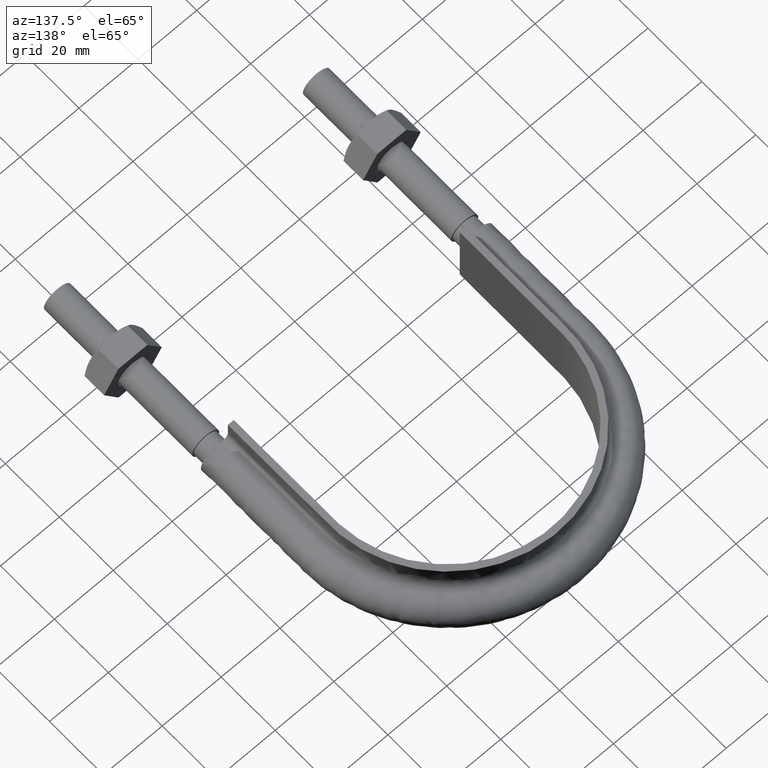
[diagram: clean part render]
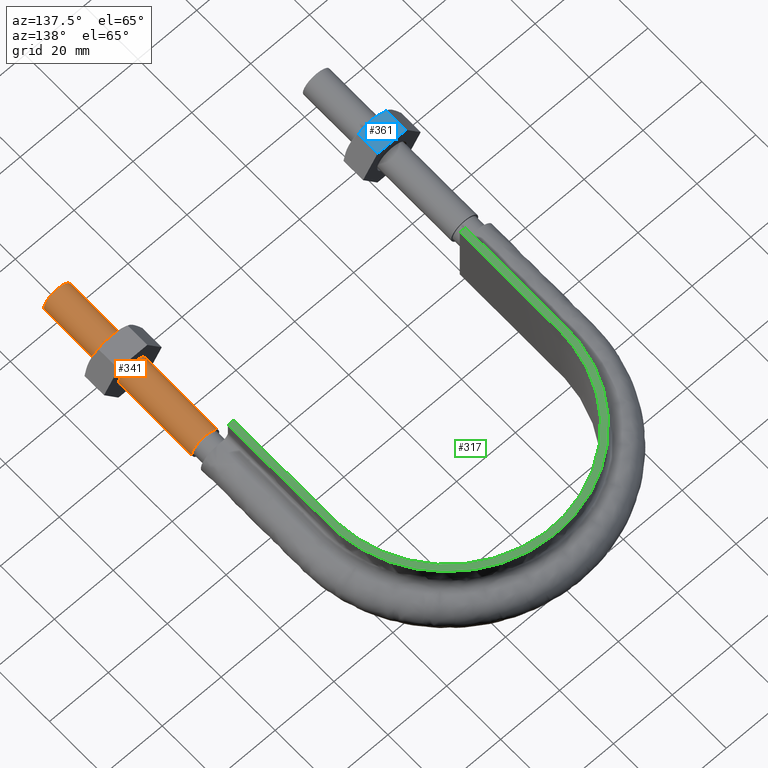
[diagram: same view with three faces highlighted in distinct colors, each labeled with its STEP entity id]
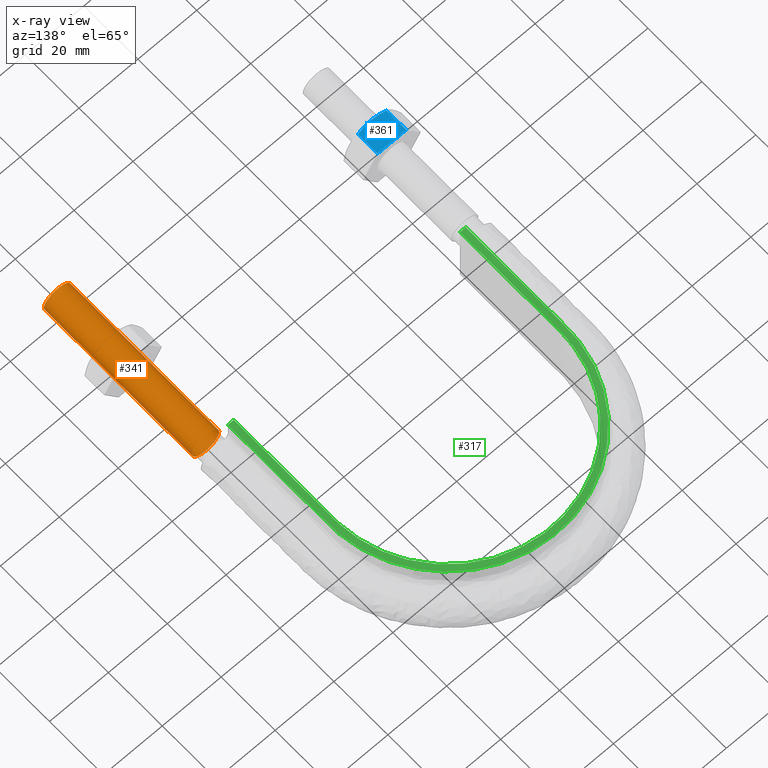
[diagram: x-ray of the same camera — body ghosted, the three highlighted faces saturated]
A machine part, auxiliary view with three faces highlighted in distinct colors.
The next image is the same camera in x-ray (body ghosted, the three faces saturated) — at least one of them is partly hidden behind the body in this view.
Their STEP definitions:

[orange] entity #341 — the highlighted cylindrical surface (bore or boss wall) has radius 4.6 mm, axis along (-0, -1, -0).
#341 = ADVANCED_FACE( '', ( #452, #453 ), #454, .T. );
#452 = FACE_OUTER_BOUND( '', #1451, .T. );
#453 = FACE_OUTER_BOUND( '', #1452, .T. );
#454 = CYLINDRICAL_SURFACE( '', #1453, 4.60000000000000 );
#1451 = EDGE_LOOP( '', ( #1739 ) );
#1452 = EDGE_LOOP( '', ( #1740 ) );
#1453 = AXIS2_PLACEMENT_3D( '', #1741, #1742, #1743 );
#1739 = ORIENTED_EDGE( '', *, *, #2155, .F. );
#1740 = ORIENTED_EDGE( '', *, *, #2156, .T. );
#1741 = CARTESIAN_POINT( '', ( 44.0000000000000, 55.0000000000000, 3.39828263185710E-015 ) );
#1742 = DIRECTION( '', ( -2.44921270764475E-016, -1.00000000000000, -6.12303176911189E-017 ) );
#1743 = DIRECTION( '', ( 1.00000000000000, -2.44921270764475E-016, -7.49830360911069E-033 ) );
#2155 = EDGE_CURVE( '', #2333, #2333, #2334, .T. );
#2156 = EDGE_CURVE( '', #2335, #2335, #2336, .T. );
#2333 = VERTEX_POINT( '', #2842 );
#2334 = CIRCLE( '', #2843, 4.60000000000000 );
#2335 = VERTEX_POINT( '', #2844 );
#2336 = CIRCLE( '', #2845, 4.60000000000000 );
#2842 = CARTESIAN_POINT( '', ( 48.6000000000000, -1.19031737591535E-014, 3.06151588455591E-017 ) );
#2843 = AXIS2_PLACEMENT_3D( '', #3232, #3233, #3234 );
#2844 = CARTESIAN_POINT( '', ( 48.6000000000000, 55.0000000000000, 3.39828263185710E-015 ) );
#2845 = AXIS2_PLACEMENT_3D( '', #3235, #3236, #3237 );
#3232 = CARTESIAN_POINT( '', ( 44.0000000000000, -1.07765359136369E-014, 3.06151588455591E-017 ) );
#3233 = DIRECTION( '', ( -2.44921270764475E-016, -1.00000000000000, -6.12303176911189E-017 ) );
#3234 = DIRECTION( '', ( 1.00000000000000, -2.44921270764475E-016, -7.49830360911069E-033 ) );
#3235 = CARTESIAN_POINT( '', ( 44.0000000000000, 55.0000000000000, 3.39828263185710E-015 ) );
#3236 = DIRECTION( '', ( -2.44921270764475E-016, -1.00000000000000, -6.12303176911189E-017 ) );
#3237 = DIRECTION( '', ( 1.00000000000000, -2.44921270764475E-016, -7.49830360911069E-033 ) );

[blue] entity #361 — the highlighted planar face has unit normal (0, 0, -1).
#361 = ADVANCED_FACE( '', ( #498 ), #499, .F. );
#498 = FACE_OUTER_BOUND( '', #1497, .T. );
#499 = PLANE( '', #1498 );
#1497 = EDGE_LOOP( '', ( #1874, #1875, #1876, #1877, #1878 ) );
#1498 = AXIS2_PLACEMENT_3D( '', #1879, #1880, #1881 );
#1874 = ORIENTED_EDGE( '', *, *, #2204, .F. );
#1875 = ORIENTED_EDGE( '', *, *, #2166, .F. );
#1876 = ORIENTED_EDGE( '', *, *, #2205, .F. );
#1877 = ORIENTED_EDGE( '', *, *, #2186, .F. );
#1878 = ORIENTED_EDGE( '', *, *, #2206, .F. );
#1879 = CARTESIAN_POINT( '', ( -48.9074772881118, 28.0000000000000, 8.50000000000000 ) );
#1880 = DIRECTION( '', ( 1.11022302462516E-016, 6.12303176911189E-017, -1.00000000000000 ) );
#1881 = DIRECTION( '', ( 0.000000000000000, -1.00000000000000, -6.12303176911189E-017 ) );
#2166 = EDGE_CURVE( '', #2354, #2349, #2356, .T. );
#2186 = EDGE_CURVE( '', #2391, #2393, #2394, .T. );
#2204 = EDGE_CURVE( '', #2349, #2418, #2419, .T. );
#2205 = EDGE_CURVE( '', #2393, #2354, #2420, .T. );
#2206 = EDGE_CURVE( '', #2418, #2391, #2421, .F. );
#2349 = VERTEX_POINT( '', #2868 );
#2354 = VERTEX_POINT( '', #2878 );
#2356 = B_SPLINE_CURVE_WITH_KNOTS( '', 3, ( #2880, #2881, #2882, #2883, #2884, #2885 ), .UNSPECIFIED., .F., .F., ( 4, 2, 4 ), ( 6.93889390390723E-018, 0.00246745482903606, 0.00493490965807212 ), .UNSPECIFIED. );
#2391 = VERTEX_POINT( '', #2942 );
#2393 = VERTEX_POINT( '', #2944 );
#2394 = LINE( '', #2945, #2946 );
#2418 = VERTEX_POINT( '', #2991 );
#2419 = B_SPLINE_CURVE_WITH_KNOTS( '', 3, ( #2992, #2993, #2994, #2995, #2996, #2997 ), .UNSPECIFIED., .F., .F., ( 4, 2, 4 ), ( 0.000000000000000, 0.00246745482903606, 0.00493490965807212 ), .UNSPECIFIED. );
#2420 = LINE( '', #2998, #2999 );
#2421 = LINE( '', #3000, #3001 );
#2868 = CARTESIAN_POINT( '', ( -44.0000000000000, 20.0000000000000, 8.50000000000000 ) );
#2878 = CARTESIAN_POINT( '', ( -39.1225006406971, 20.7505553499465, 8.50000000000000 ) );
#2880 = CARTESIAN_POINT( '', ( -39.1225006406971, 20.7505553499465, 8.50000000000000 ) );
#2881 = CARTESIAN_POINT( '', ( -39.9194282933228, 20.5215585493657, 8.50000000000000 ) );
#2882 = CARTESIAN_POINT( '', ( -40.7225568243372, 20.3328582843707, 8.50000000000000 ) );
#2883 = CARTESIAN_POINT( '', ( -42.3466937523143, 20.0716504305290, 8.50000000000000 ) );
#2884 = CARTESIAN_POINT( '', ( -43.1678340498093, 20.0000000000000, 8.50000000000000 ) );
#2885 = CARTESIAN_POINT( '', ( -44.0000000000000, 20.0000000000000, 8.50000000000000 ) );
#2942 = CARTESIAN_POINT( '', ( -48.8774993593029, 28.0000000000000, 8.50000000000000 ) );
#2944 = CARTESIAN_POINT( '', ( -39.1225006406971, 28.0000000000000, 8.50000000000000 ) );
#2945 = CARTESIAN_POINT( '', ( -39.1000000000000, 28.0000000000000, 8.50000000000000 ) );
#2946 = VECTOR( '', #3290, 1000.00000000000 );
#2991 = CARTESIAN_POINT( '', ( -48.8774993593029, 20.7505553499465, 8.50000000000000 ) );
#2992 = CARTESIAN_POINT( '', ( -44.0000000000000, 20.0000000000000, 8.50000000000000 ) );
#2993 = CARTESIAN_POINT( '', ( -44.8321659501907, 20.0000000000000, 8.50000000000000 ) );
#2994 = CARTESIAN_POINT( '', ( -45.6533062476857, 20.0716504305290, 8.50000000000000 ) );
#2995 = CARTESIAN_POINT( '', ( -47.2774431756629, 20.3328582843707, 8.50000000000000 ) );
#2996 = CARTESIAN_POINT( '', ( -48.0805717066773, 20.5215585493657, 8.50000000000000 ) );
#2997 = CARTESIAN_POINT( '', ( -48.8774993593029, 20.7505553499465, 8.50000000000000 ) );
#2998 = CARTESIAN_POINT( '', ( -39.1225006406971, 28.0000000000000, 8.50000000000000 ) );
#2999 = VECTOR( '', #3321, 1000.00000000000 );
#3000 = CARTESIAN_POINT( '', ( -48.8774993593029, 28.0000000000000, 8.50000000000000 ) );
#3001 = VECTOR( '', #3322, 1000.00000000000 );
#3290 = DIRECTION( '', ( 1.00000000000000, -2.44921270764475E-016, 1.11022302462516E-016 ) );
#3321 = DIRECTION( '', ( -2.44921270764475E-016, -1.00000000000000, -6.12303176911189E-017 ) );
#3322 = DIRECTION( '', ( -2.44921270764475E-016, -1.00000000000000, -6.12303176911189E-017 ) );

[green] entity #317 — the highlighted planar face has unit normal (0, 0, 1).
#317 = ADVANCED_FACE( '', ( #399 ), #400, .T. );
#399 = FACE_OUTER_BOUND( '', #1099, .T. );
#400 = PLANE( '', #1100 );
#1099 = EDGE_LOOP( '', ( #1579, #1580, #1581, #1582 ) );
#1100 = AXIS2_PLACEMENT_3D( '', #1583, #1584, #1585 );
#1579 = ORIENTED_EDGE( '', *, *, #2112, .T. );
#1580 = ORIENTED_EDGE( '', *, *, #2119, .F. );
#1581 = ORIENTED_EDGE( '', *, *, #2120, .T. );
#1582 = ORIENTED_EDGE( '', *, *, #2117, .F. );
#1583 = CARTESIAN_POINT( '', ( 55.0000000000000, 159.300000000000, 12.5000000000000 ) );
#1584 = DIRECTION( '', ( 0.000000000000000, 0.000000000000000, 1.00000000000000 ) );
#1585 = DIRECTION( '', ( 1.00000000000000, 0.000000000000000, 0.000000000000000 ) );
#2112 = EDGE_CURVE( '', #2266, #2263, #2267, .F. );
#2117 = EDGE_CURVE( '', #2266, #2275, #2276, .T. );
#2119 = EDGE_CURVE( '', #2278, #2263, #2279, .T. );
#2120 = EDGE_CURVE( '', #2278, #2275, #2280, .F. );
#2263 = VERTEX_POINT( '', #2513 );
#2266 = VERTEX_POINT( '', #2517 );
#2267 = LINE( '', #2518, #2519 );
#2275 = VERTEX_POINT( '', #2583 );
#2276 = B_SPLINE_CURVE_WITH_KNOTS( '', 3, ( #2584, #2585, #2586, #2587, #2588, #2589, #2590, #2591, #2592, #2593, #2594, #2595, #2596, #2597, #2598, #2599, #2600 ), .UNSPECIFIED., .F., .F., ( 4, 3, 1, 1, 1, 1, 1, 1, 1, 3, 4 ), ( 0.0698254364089772, 1.00000000000000, 1.50000000000000, 2.00000000000000, 3.00000000000000, 4.00000000000000, 5.00000000000000, 6.00000000000000, 6.50000000000000, 7.00000000000000, 7.93017456359102 ), .UNSPECIFIED. );
#2278 = VERTEX_POINT( '', #2632 );
#2279 = B_SPLINE_CURVE_WITH_KNOTS( '', 3, ( #2633, #2634, #2635, #2636, #2637, #2638, #2639, #2640, #2641, #2642, #2643, #2644, #2645, #2646, #2647, #2648, #2649, #2650, #2651, #2652, #2653, #2654, #2655, #2656, #2657, #2658, #2659, #2660, #2661, #2662, #2663, #2664, #2665, #2666, #2667, #2668, #2669, #2670, #2671, #2672, #2673, #2674, #2675, #2676, #2677, #2678, #2679, #2680, #2681, #2682, #2683, #2684, #2685, #2686, #2687, #2688, #2689, #2690, #2691, #2692, #2693, #2694, #2695, #2696, #2697, #2698, #2699, #2700, #2701, #2702, #2703, #2704, #2705, #2706, #2707, #2708, #2709, #2710, #2711, #2712, #2713, #2714, #2715, #2716, #2717, #2718 ), .UNSPECIFIED., .F., .F., ( 4, 1, 2, 2, 2, 2, 2, 2, 2, 2, 2, 2, 2, 2, 2, 2, 2, 2, 2, 2, 2, 2, 2, 2, 2, 2, 2, 2, 2, 2, 2, 2, 2, 2, 2, 2, 2, 2, 2, 2, 2, 2, 1, 4 ), ( 6.93889390390723E-018, 0.0243379018108107, 0.0365068527162160, 0.0380279715793916, 0.0395490904425673, 0.0425913281689186, 0.0456335658952699, 0.0486758036216212, 0.0547602790743238, 0.0578025168006751, 0.0593236356638507, 0.0608447545270264, 0.0669292299797289, 0.0699714677060801, 0.0714925865692557, 0.0730137054324314, 0.0790981808851338, 0.0851826563378363, 0.0867037752010119, 0.0882248940641875, 0.0912671317905387, 0.0973516072432411, 0.0988727261064167, 0.100393844969592, 0.103436082695944, 0.109520558148646, 0.112562795874997, 0.115605033601348, 0.121689509054051, 0.123210627917226, 0.124731746780402, 0.127773984506753, 0.133858459959456, 0.136900697685807, 0.139942935412158, 0.146027410864861, 0.149069648591212, 0.150590767454388, 0.152111886317563, 0.155154124043915, 0.156675242907090, 0.158196361770266, 0.170365312675671, 0.194703214486480 ), .UNSPECIFIED. );
#2280 = LINE( '', #2719, #2720 );
#2513 = CARTESIAN_POINT( '', ( -38.4000000000000, 59.3000000000000, 12.5000000000000 ) );
#2517 = CARTESIAN_POINT( '', ( -40.4000000000000, 59.3000000000000, 12.5000000000000 ) );
#2518 = CARTESIAN_POINT( '', ( 55.0000000000000, 59.3000000000000, 12.5000000000000 ) );
#2519 = VECTOR( '', #3179, 1000.00000000000 );
#2583 = CARTESIAN_POINT( '', ( 40.4000000000000, 59.3000000000000, 12.5000000000000 ) );
#2584 = CARTESIAN_POINT( '', ( -40.4000000000000, 59.3000000000000, 12.5000000000000 ) );
#2585 = CARTESIAN_POINT( '', ( -40.4000000000000, 71.7333333333334, 12.5000000000000 ) );
#2586 = CARTESIAN_POINT( '', ( -40.4000000000000, 84.1666666666666, 12.5000000000000 ) );
#2587 = CARTESIAN_POINT( '', ( -40.4000000000000, 96.6000000000000, 12.5000000000000 ) );
#2588 = CARTESIAN_POINT( '', ( -40.4000000000000, 100.116528833197, 12.5000000000000 ) );
#2589 = CARTESIAN_POINT( '', ( -39.4544182095027, 107.175179019489, 12.5000000000000 ) );
#2590 = CARTESIAN_POINT( '', ( -34.0439198137652, 120.322280291266, 12.5000000000000 ) );
#2591 = CARTESIAN_POINT( '', ( -21.1440253219688, 133.223582281160, 12.5000000000000 ) );
#2592 = CARTESIAN_POINT( '', ( 3.17534878498284E-014, 138.888208859420, 12.5000000000000 ) );
#2593 = CARTESIAN_POINT( '', ( 21.1440253219689, 133.223582281160, 12.5000000000000 ) );
#2594 = CARTESIAN_POINT( '', ( 34.0439198137653, 120.322280291266, 12.5000000000000 ) );
#2595 = CARTESIAN_POINT( '', ( 39.4544182095027, 107.175179019489, 12.5000000000000 ) );
#2596 = CARTESIAN_POINT( '', ( 40.4000000000000, 100.116528833197, 12.5000000000000 ) );
#2597 = CARTESIAN_POINT( '', ( 40.4000000000000, 96.6000000000000, 12.5000000000000 ) );
#2598 = CARTESIAN_POINT( '', ( 40.4000000000000, 84.1666666666666, 12.5000000000000 ) );
#2599 = CARTESIAN_POINT( '', ( 40.4000000000000, 71.7333333333334, 12.5000000000000 ) );
#2600 = CARTESIAN_POINT( '', ( 40.4000000000000, 59.3000000000000, 12.5000000000000 ) );
#2632 = CARTESIAN_POINT( '', ( 38.4000000000000, 59.3000000000000, 12.5000000000000 ) );
#2633 = CARTESIAN_POINT( '', ( 38.4000000000000, 59.3000000000000, 12.5000000000000 ) );
#2634 = CARTESIAN_POINT( '', ( 38.4000000000000, 67.4126339369367, 12.5000000000000 ) );
#2635 = CARTESIAN_POINT( '', ( 38.4000000000000, 79.5815848423417, 12.5000000000000 ) );
#2636 = CARTESIAN_POINT( '', ( 38.4000000000000, 91.7505357477467, 12.5000000000000 ) );
#2637 = CARTESIAN_POINT( '', ( 38.4000000000000, 96.3138923372736, 12.5000000000000 ) );
#2638 = CARTESIAN_POINT( '', ( 38.4027743076037, 96.8211194098902, 12.5000000000000 ) );
#2639 = CARTESIAN_POINT( '', ( 38.3830167791574, 97.8338636956790, 12.5000000000000 ) );
#2640 = CARTESIAN_POINT( '', ( 38.3628782069929, 98.3395426144399, 12.5000000000000 ) );
#2641 = CARTESIAN_POINT( '', ( 38.2722040230530, 99.8545348977656, 12.5000000000000 ) );
#2642 = CARTESIAN_POINT( '', ( 38.1714849409613, 100.861808856702, 12.5000000000000 ) );
#2643 = CARTESIAN_POINT( '', ( 37.8904277266655, 102.870977156620, 12.5000000000000 ) );
#2644 = CARTESIAN_POINT( '', ( 37.7100929165158, 103.872871722062, 12.5000000000000 ) );
#2645 = CARTESIAN_POINT( '', ( 37.2682777085644, 105.871178091473, 12.5000000000000 ) );
#2646 = CARTESIAN_POINT( '', ( 37.0058649207665, 106.869209598004, 12.5000000000000 ) );
#2647 = CARTESIAN_POINT( '', ( 36.1099085355124, 109.800428328994, 12.5000000000000 ) );
#2648 = CARTESIAN_POINT( '', ( 35.3652812283339, 111.689277860510, 12.5000000000000 ) );
#2649 = CARTESIAN_POINT( '', ( 34.0270721353676, 114.424482046523, 12.5000000000000 ) );
#2650 = CARTESIAN_POINT( '', ( 33.5438803306412, 115.319763573667, 12.5000000000000 ) );
#2651 = CARTESIAN_POINT( '', ( 32.7614856080269, 116.637153374160, 12.5000000000000 ) );
#2652 = CARTESIAN_POINT( '', ( 32.4911122498970, 117.072039439345, 12.5000000000000 ) );
#2653 = CARTESIAN_POINT( '', ( 31.9310694523163, 117.933259191099, 12.5000000000000 ) );
#2654 = CARTESIAN_POINT( '', ( 31.6416548483074, 118.359099832881, 12.5000000000000 ) );
#2655 = CARTESIAN_POINT( '', ( 30.1598500561493, 120.447972709778, 12.5000000000000 ) );
#2656 = CARTESIAN_POINT( '', ( 28.8544690281685, 122.006253780205, 12.5000000000000 ) );
#2657 = CARTESIAN_POINT( '', ( 26.7242269234556, 124.181725572989, 12.5000000000000 ) );
#2658 = CARTESIAN_POINT( '', ( 25.9852601970117, 124.879711605143, 12.5000000000000 ) );
#2659 = CARTESIAN_POINT( '', ( 24.8327554866621, 125.885251295440, 12.5000000000000 ) );
#2660 = CARTESIAN_POINT( '', ( 24.4412331318477, 126.213513644747, 12.5000000000000 ) );
#2661 = CARTESIAN_POINT( '', ( 23.6432116170531, 126.855950622700, 12.5000000000000 ) );
#2662 = CARTESIAN_POINT( '', ( 23.2357844532914, 127.170799679600, 12.5000000000000 ) );
#2663 = CARTESIAN_POINT( '', ( 21.1728995967701, 128.699717522121, 12.5000000000000 ) );
#2664 = CARTESIAN_POINT( '', ( 19.4461214786924, 129.775116348712, 12.5000000000000 ) );
#2665 = CARTESIAN_POINT( '', ( 15.8424012951628, 131.635807157406, 12.5000000000000 ) );
#2666 = CARTESIAN_POINT( '', ( 13.9663663217125, 132.422851581443, 12.5000000000000 ) );
#2667 = CARTESIAN_POINT( '', ( 11.5271708169513, 133.224762065559, 12.5000000000000 ) );
#2668 = CARTESIAN_POINT( '', ( 11.0351210878859, 133.375746188077, 12.5000000000000 ) );
#2669 = CARTESIAN_POINT( '', ( 10.0502423640909, 133.656786422983, 12.5000000000000 ) );
#2670 = CARTESIAN_POINT( '', ( 9.55637016529635, 133.787194835959, 12.5000000000000 ) );
#2671 = CARTESIAN_POINT( '', ( 8.07051418322873, 134.148502213832, 12.5000000000000 ) );
#2672 = CARTESIAN_POINT( '', ( 7.07429985999588, 134.349545743025, 12.5000000000000 ) );
#2673 = CARTESIAN_POINT( '', ( 4.06886690428292, 134.834187354575, 12.5000000000000 ) );
#2674 = CARTESIAN_POINT( '', ( 2.04300780873486, 135.000351662540, 12.5000000000000 ) );
#2675 = CARTESIAN_POINT( '', ( -0.518810472446091, 134.999911391897, 12.5000000000000 ) );
#2676 = CARTESIAN_POINT( '', ( -1.03384934041121, 134.989267949139, 12.5000000000000 ) );
#2677 = CARTESIAN_POINT( '', ( -2.05999227101022, 134.947123645522, 12.5000000000000 ) );
#2678 = CARTESIAN_POINT( '', ( -2.57100025916361, 134.915690794062, 12.5000000000000 ) );
#2679 = CARTESIAN_POINT( '', ( -4.09798525337116, 134.791070625937, 12.5000000000000 ) );
#2680 = CARTESIAN_POINT( '', ( -5.10793619044561, 134.667626472700, 12.5000000000000 ) );
#2681 = CARTESIAN_POINT( '', ( -8.11438462156133, 134.179780837089, 12.5000000000000 ) );
#2682 = CARTESIAN_POINT( '', ( -10.0876738344829, 133.698850790019, 12.5000000000000 ) );
#2683 = CARTESIAN_POINT( '', ( -13.0003199951630, 132.740024822744, 12.5000000000000 ) );
#2684 = CARTESIAN_POINT( '', ( -13.9672170977487, 132.378727202231, 12.5000000000000 ) );
#2685 = CARTESIAN_POINT( '', ( -15.8546719802245, 131.585984907772, 12.5000000000000 ) );
#2686 = CARTESIAN_POINT( '', ( -16.7774313079128, 131.154197465975, 12.5000000000000 ) );
#2687 = CARTESIAN_POINT( '', ( -19.4833402127082, 129.753490344414, 12.5000000000000 ) );
#2688 = CARTESIAN_POINT( '', ( -21.2036319794209, 128.678400373100, 12.5000000000000 ) );
#2689 = CARTESIAN_POINT( '', ( -23.2504143165322, 127.159581599005, 12.5000000000000 ) );
#2690 = CARTESIAN_POINT( '', ( -23.6545765017689, 126.847044416500, 12.5000000000000 ) );
#2691 = CARTESIAN_POINT( '', ( -24.4524162332018, 126.204260920726, 12.5000000000000 ) );
#2692 = CARTESIAN_POINT( '', ( -24.8469576925089, 125.873240647292, 12.5000000000000 ) );
#2693 = CARTESIAN_POINT( '', ( -26.0068899055368, 124.860053871450, 12.5000000000000 ) );
#2694 = CARTESIAN_POINT( '', ( -26.7486892538445, 124.158088969384, 12.5000000000000 ) );
#2695 = CARTESIAN_POINT( '', ( -28.8823748109422, 121.974991317251, 12.5000000000000 ) );
#2696 = CARTESIAN_POINT( '', ( -30.1833131714200, 120.417299289572, 12.5000000000000 ) );
#2697 = CARTESIAN_POINT( '', ( -31.9490860628640, 117.924495268019, 12.5000000000000 ) );
#2698 = CARTESIAN_POINT( '', ( -32.5065492449488, 117.067357440084, 12.5000000000000 ) );
#2699 = CARTESIAN_POINT( '', ( -33.5561706257855, 115.298108495221, 12.5000000000000 ) );
#2700 = CARTESIAN_POINT( '', ( -34.0419906193419, 114.396127879279, 12.5000000000000 ) );
#2701 = CARTESIAN_POINT( '', ( -35.3824842141312, 111.649725427965, 12.5000000000000 ) );
#2702 = CARTESIAN_POINT( '', ( -36.1236281599900, 109.761104672605, 12.5000000000000 ) );
#2703 = CARTESIAN_POINT( '', ( -37.0127103209049, 106.843968621002, 12.5000000000000 ) );
#2704 = CARTESIAN_POINT( '', ( -37.2717329928219, 105.857467876968, 12.5000000000000 ) );
#2705 = CARTESIAN_POINT( '', ( -37.6030425852181, 104.356073245167, 12.5000000000000 ) );
#2706 = CARTESIAN_POINT( '', ( -37.7041051856697, 103.850877289074, 12.5000000000000 ) );
#2707 = CARTESIAN_POINT( '', ( -37.8853786337735, 102.841026729264, 12.5000000000000 ) );
#2708 = CARTESIAN_POINT( '', ( -37.9657364586178, 102.335935616760, 12.5000000000000 ) );
#2709 = CARTESIAN_POINT( '', ( -38.1763323138402, 100.820170574568, 12.5000000000000 ) );
#2710 = CARTESIAN_POINT( '', ( -38.2761686057870, 99.8090061644105, 12.5000000000000 ) );
#2711 = CARTESIAN_POINT( '', ( -38.3651025185759, 98.2912783131886, 12.5000000000000 ) );
#2712 = CARTESIAN_POINT( '', ( -38.3845912942189, 97.7852051818457, 12.5000000000000 ) );
#2713 = CARTESIAN_POINT( '', ( -38.4030301939459, 96.7727275628628, 12.5000000000000 ) );
#2714 = CARTESIAN_POINT( '', ( -38.4000000000000, 96.2662911261513, 12.5000000000000 ) );
#2715 = CARTESIAN_POINT( '', ( -38.4000000000000, 91.7088031790915, 12.5000000000000 ) );
#2716 = CARTESIAN_POINT( '', ( -38.4000000000000, 79.5555019869322, 12.5000000000000 ) );
#2717 = CARTESIAN_POINT( '', ( -38.4000000000000, 67.4022007947729, 12.5000000000000 ) );
#2718 = CARTESIAN_POINT( '', ( -38.4000000000000, 59.3000000000000, 12.5000000000000 ) );
#2719 = CARTESIAN_POINT( '', ( 55.0000000000000, 59.3000000000000, 12.5000000000000 ) );
#2720 = VECTOR( '', #3181, 1000.00000000000 );
#3179 = DIRECTION( '', ( -1.00000000000000, 1.83649404852125E-048, 0.000000000000000 ) );
#3181 = DIRECTION( '', ( -1.00000000000000, 1.83649404852125E-048, 0.000000000000000 ) );